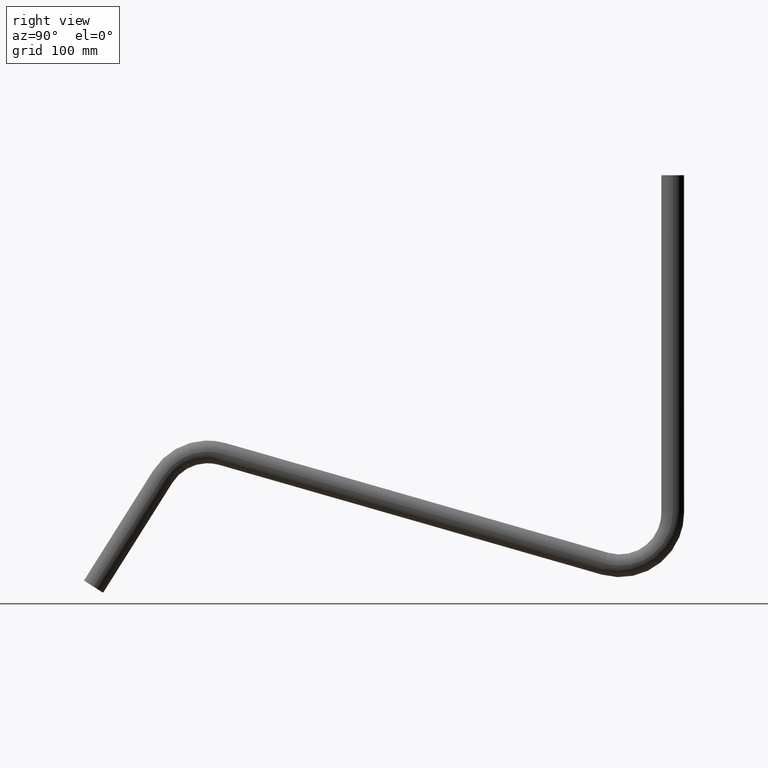
[diagram: clean part render]
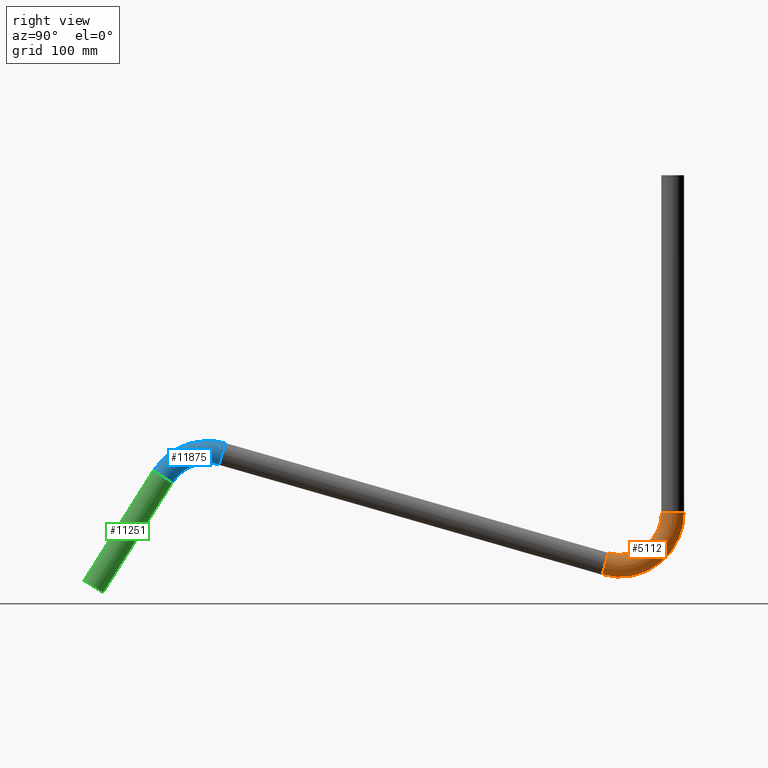
[diagram: same view with three faces highlighted in distinct colors, each labeled with its STEP entity id]
A machine part, right view with three faces highlighted in distinct colors.
Their STEP definitions:

[orange] entity #5112 — the highlighted toroidal blend (fillet) surface has major radius 78 mm and minor (blend) radius 16.85 mm.
#1 = CIRCLE ( 'NONE', #2380, 16.85000000000000142 ) ;
#884 = ORIENTED_EDGE ( 'NONE', *, *, #6254, .T. ) ;
#1985 = DIRECTION ( 'NONE',  ( 1.000000000000000000, 0.000000000000000000, 0.000000000000000000 ) ) ;
#2064 = EDGE_CURVE ( 'NONE', #10555, #10555, #1, .T. ) ;
#2380 = AXIS2_PLACEMENT_3D ( 'NONE', #13662, #7322, #1985 ) ;
#3852 = CARTESIAN_POINT ( 'NONE',  ( 16.85000000000000142, 853.5009607480266141, 108.7640895160294008 ) ) ;
#4154 = CARTESIAN_POINT ( 'NONE',  ( 0.000000000000000000, 754.0012469943004589, 33.78567723284064783 ) ) ;
#4330 = TOROIDAL_SURFACE ( 'NONE', #9056, 78.00000000000008527, 16.85000000000000142 ) ;
#4603 = DIRECTION ( 'NONE',  ( 1.000000000000000000, 0.000000000000000000, 0.000000000000000000 ) ) ;
#4688 = CARTESIAN_POINT ( 'NONE',  ( 0.000000000000000000, 775.5009607480266141, 108.7640895160294008 ) ) ;
#5112 = ADVANCED_FACE ( 'NONE', ( #6926, #10074 ), #4330, .T. ) ;
#5764 = ORIENTED_EDGE ( 'NONE', *, *, #2064, .F. ) ;
#6254 = EDGE_CURVE ( 'NONE', #12015, #12015, #8606, .T. ) ;
#6275 = EDGE_LOOP ( 'NONE', ( #884 ) ) ;
#6832 = AXIS2_PLACEMENT_3D ( 'NONE', #4154, #13616, #7283 ) ;
#6926 = FACE_OUTER_BOUND ( 'NONE', #11991, .T. ) ;
#7283 = DIRECTION ( 'NONE',  ( 1.000000000000000000, 0.000000000000000000, 0.000000000000000000 ) ) ;
#7322 = DIRECTION ( 'NONE',  ( 0.000000000000000000, 0.000000000000000000, 1.000000000000000000 ) ) ;
#7675 = DIRECTION ( 'NONE',  ( 0.000000000000000000, 0.000000000000000000, -1.000000000000000000 ) ) ;
#8226 = CARTESIAN_POINT ( 'NONE',  ( 16.85000000000000142, 754.0012469943004589, 33.78567723284064783 ) ) ;
#8606 = CIRCLE ( 'NONE', #6832, 16.85000000000000142 ) ;
#9056 = AXIS2_PLACEMENT_3D ( 'NONE', #4688, #4603, #7675 ) ;
#10074 = FACE_OUTER_BOUND ( 'NONE', #6275, .T. ) ;
#10555 = VERTEX_POINT ( 'NONE', #3852 ) ;
#11991 = EDGE_LOOP ( 'NONE', ( #5764 ) ) ;
#12015 = VERTEX_POINT ( 'NONE', #8226 ) ;
#13616 = DIRECTION ( 'NONE',  ( 0.000000000000000000, 0.9612616959383178949, -0.2756373558170031601 ) ) ;
#13662 = CARTESIAN_POINT ( 'NONE',  ( 0.000000000000000000, 853.5009607480266141, 108.7640895160294008 ) ) ;

[blue] entity #11875 — the highlighted toroidal blend (fillet) surface has major radius 78 mm and minor (blend) radius 16.85 mm.
#608 = DIRECTION ( 'NONE',  ( 0.000000000000000000, 0.5328762760707310697, 0.8461931661275633454 ) ) ;
#1871 = CARTESIAN_POINT ( 'NONE',  ( 16.85000000000000142, 189.6445053089139208, 195.6123688330031598 ) ) ;
#1976 = CARTESIAN_POINT ( 'NONE',  ( 0.000000000000000000, 168.1447915551876804, 120.6339565498143287 ) ) ;
#2190 = ORIENTED_EDGE ( 'NONE', *, *, #6050, .T. ) ;
#2916 = CIRCLE ( 'NONE', #8192, 16.85000000000000142 ) ;
#4085 = FACE_OUTER_BOUND ( 'NONE', #5560, .T. ) ;
#4285 = DIRECTION ( 'NONE',  ( 1.000000000000000000, 0.000000000000000000, 0.000000000000000000 ) ) ;
#4906 = CARTESIAN_POINT ( 'NONE',  ( 0.000000000000000000, 102.1417245972376975, 162.1983060833312891 ) ) ;
#5301 = CARTESIAN_POINT ( 'NONE',  ( 0.000000000000000000, 189.6445053089139208, 195.6123688330031598 ) ) ;
#5560 = EDGE_LOOP ( 'NONE', ( #2190 ) ) ;
#6050 = EDGE_CURVE ( 'NONE', #9232, #9232, #7109, .T. ) ;
#6085 = VERTEX_POINT ( 'NONE', #1871 ) ;
#6350 = DIRECTION ( 'NONE',  ( 0.000000000000000000, 0.9612616959383180060, -0.2756373558170028271 ) ) ;
#6915 = ORIENTED_EDGE ( 'NONE', *, *, #10928, .F. ) ;
#7109 = CIRCLE ( 'NONE', #10386, 16.85000000000000142 ) ;
#8192 = AXIS2_PLACEMENT_3D ( 'NONE', #5301, #6350, #4285 ) ;
#9232 = VERTEX_POINT ( 'NONE', #10177 ) ;
#10177 = CARTESIAN_POINT ( 'NONE',  ( 16.85000000000000142, 102.1417245972376975, 162.1983060833312891 ) ) ;
#10386 = AXIS2_PLACEMENT_3D ( 'NONE', #4906, #608, #11200 ) ;
#10928 = EDGE_CURVE ( 'NONE', #6085, #6085, #2916, .T. ) ;
#11200 = DIRECTION ( 'NONE',  ( 1.000000000000000000, 0.000000000000000000, 0.000000000000000000 ) ) ;
#11366 = DIRECTION ( 'NONE',  ( 0.000000000000000000, 0.000000000000000000, 1.000000000000000000 ) ) ;
#11464 = AXIS2_PLACEMENT_3D ( 'NONE', #1976, #13470, #11366 ) ;
#11875 = ADVANCED_FACE ( 'NONE', ( #12492, #4085 ), #13334, .T. ) ;
#12005 = EDGE_LOOP ( 'NONE', ( #6915 ) ) ;
#12492 = FACE_OUTER_BOUND ( 'NONE', #12005, .T. ) ;
#13334 = TOROIDAL_SURFACE ( 'NONE', #11464, 78.00000000000001421, 16.85000000000000142 ) ;
#13470 = DIRECTION ( 'NONE',  ( -1.000000000000000000, -0.000000000000000000, 0.000000000000000000 ) ) ;

[green] entity #11251 — the highlighted cylindrical surface (bore or boss wall) has radius 16.85 mm, axis along (0, 0.5329, 0.8462).
#602 = DIRECTION ( 'NONE',  ( 1.000000000000000000, 0.000000000000000000, 0.000000000000000000 ) ) ;
#608 = DIRECTION ( 'NONE',  ( 0.000000000000000000, 0.5328762760707310697, 0.8461931661275633454 ) ) ;
#997 = CIRCLE ( 'NONE', #6708, 16.85000000000000142 ) ;
#1801 = EDGE_CURVE ( 'NONE', #11537, #11537, #997, .T. ) ;
#2818 = CARTESIAN_POINT ( 'NONE',  ( 0.000000000000000000, 0.000000000000000000, 0.000000000000000000 ) ) ;
#2899 = ORIENTED_EDGE ( 'NONE', *, *, #1801, .T. ) ;
#2919 = EDGE_LOOP ( 'NONE', ( #2899 ) ) ;
#3896 = CARTESIAN_POINT ( 'NONE',  ( 16.85000000000000142, 0.000000000000000000, 0.000000000000000000 ) ) ;
#4709 = CARTESIAN_POINT ( 'NONE',  ( 0.000000000000000000, 0.000000000000000000, 0.000000000000000000 ) ) ;
#4753 = FACE_OUTER_BOUND ( 'NONE', #9386, .T. ) ;
#4906 = CARTESIAN_POINT ( 'NONE',  ( 0.000000000000000000, 102.1417245972376975, 162.1983060833312891 ) ) ;
#5101 = DIRECTION ( 'NONE',  ( 0.000000000000000000, 0.5328762760707310697, 0.8461931661275632344 ) ) ;
#6050 = EDGE_CURVE ( 'NONE', #9232, #9232, #7109, .T. ) ;
#6355 = ORIENTED_EDGE ( 'NONE', *, *, #6050, .F. ) ;
#6708 = AXIS2_PLACEMENT_3D ( 'NONE', #4709, #9043, #602 ) ;
#7109 = CIRCLE ( 'NONE', #10386, 16.85000000000000142 ) ;
#7875 = CYLINDRICAL_SURFACE ( 'NONE', #11548, 16.85000000000000497 ) ;
#9043 = DIRECTION ( 'NONE',  ( 0.000000000000000000, 0.5328762760707310697, 0.8461931661275633454 ) ) ;
#9232 = VERTEX_POINT ( 'NONE', #10177 ) ;
#9386 = EDGE_LOOP ( 'NONE', ( #6355 ) ) ;
#10176 = DIRECTION ( 'NONE',  ( 0.000000000000000000, -0.8461931661275632344, 0.5328762760707309587 ) ) ;
#10177 = CARTESIAN_POINT ( 'NONE',  ( 16.85000000000000142, 102.1417245972376975, 162.1983060833312891 ) ) ;
#10386 = AXIS2_PLACEMENT_3D ( 'NONE', #4906, #608, #11200 ) ;
#10683 = FACE_OUTER_BOUND ( 'NONE', #2919, .T. ) ;
#11200 = DIRECTION ( 'NONE',  ( 1.000000000000000000, 0.000000000000000000, 0.000000000000000000 ) ) ;
#11251 = ADVANCED_FACE ( 'NONE', ( #4753, #10683 ), #7875, .T. ) ;
#11537 = VERTEX_POINT ( 'NONE', #3896 ) ;
#11548 = AXIS2_PLACEMENT_3D ( 'NONE', #2818, #5101, #10176 ) ;